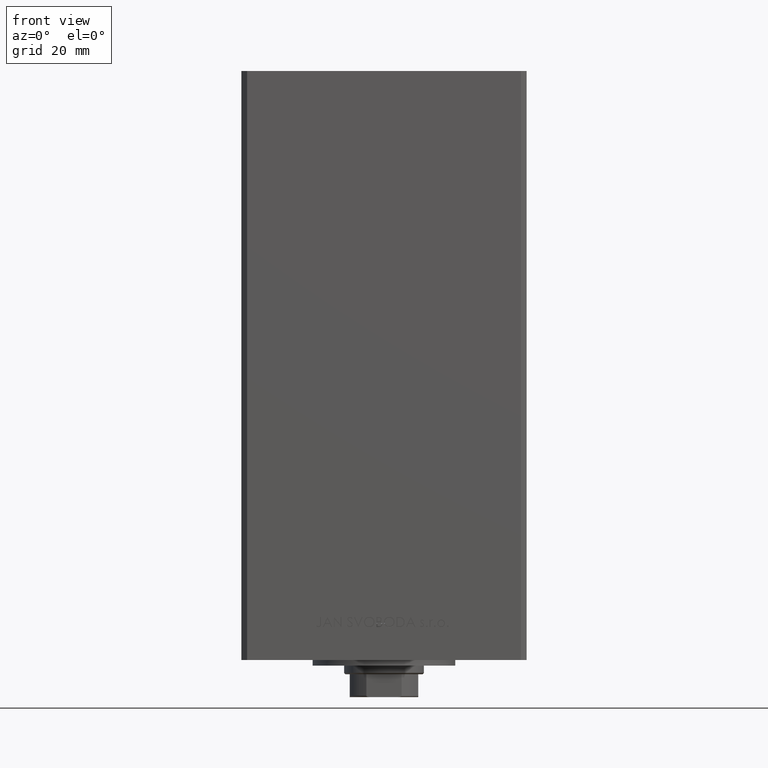
[diagram: clean part render]
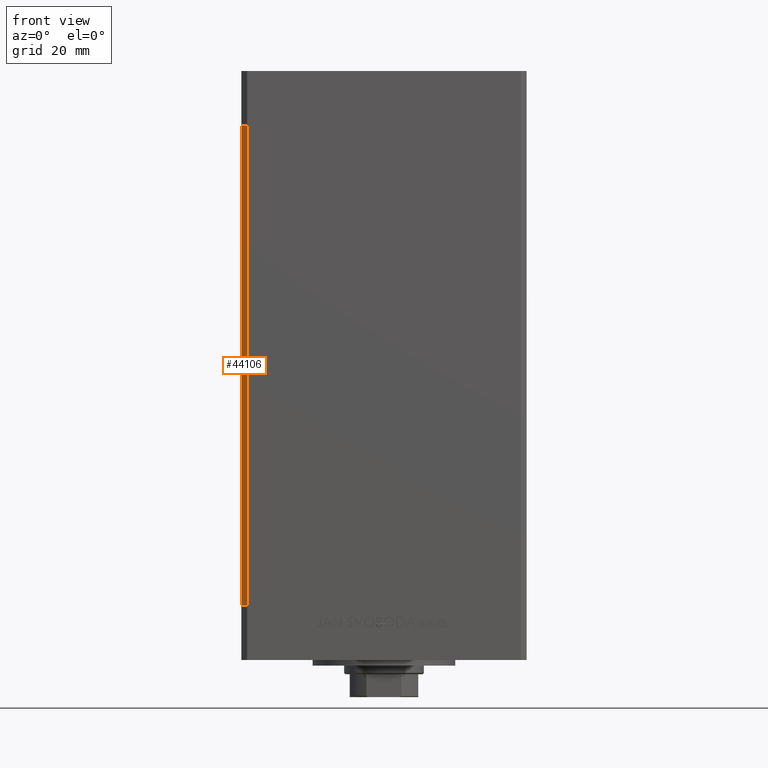
[diagram: same view with one face highlighted and labeled with its STEP entity id]
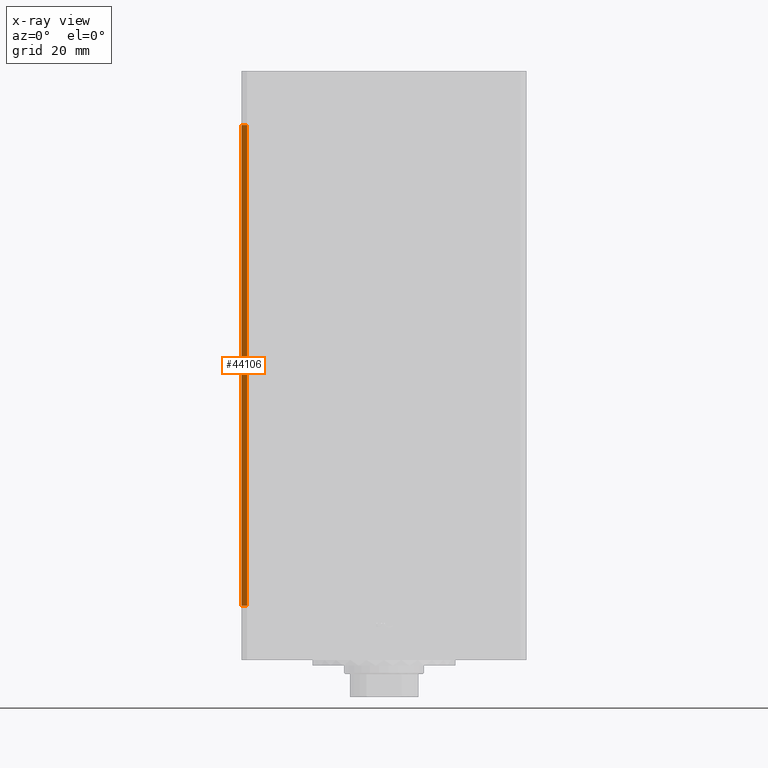
[diagram: x-ray of the same camera — body ghosted, the highlighted face saturated]
A machine part, front view. The second image highlights one B-rep face of the part: STEP entity #44106.
The next image is the same camera in x-ray: the body ghosted, the highlighted face saturated — about 0% of this face is hidden behind the body in this view.
In plain terms, the highlighted planar face has unit normal (0.7071, 0.7071, 0).
Its self-contained STEP definition (entity closure, byte-faithful):
#354 = PLANE ( 'NONE',  #15833 ) ;
#728 = ORIENTED_EDGE ( 'NONE', *, *, #16809, .F. ) ;
#3680 = VECTOR ( 'NONE', #34990, 1000.000000000000114 ) ;
#3821 = LINE ( 'NONE', #11540, #32649 ) ;
#3827 = DIRECTION ( 'NONE',  ( 0.7071067811865475727, 0.7071067811865475727, -0.000000000000000000 ) ) ;
#4247 = CARTESIAN_POINT ( 'NONE',  ( -47.99999999999998579, -43.50000000000000000, 168.5000000000000000 ) ) ;
#4918 = EDGE_LOOP ( 'NONE', ( #9275, #728, #36668, #30566 ) ) ;
#5357 = CARTESIAN_POINT ( 'NONE',  ( -49.99999999999998579, -41.49999999999999289, 168.5000000000000000 ) ) ;
#7977 = LINE ( 'NONE', #4247, #35651 ) ;
#8054 = VERTEX_POINT ( 'NONE', #27189 ) ;
#9275 = ORIENTED_EDGE ( 'NONE', *, *, #23966, .T. ) ;
#9710 = VERTEX_POINT ( 'NONE', #13041 ) ;
#10133 = VERTEX_POINT ( 'NONE', #20701 ) ;
#10629 = EDGE_CURVE ( 'NONE', #10133, #9710, #15831, .T. ) ;
#11305 = FACE_OUTER_BOUND ( 'NONE', #4918, .T. ) ;
#11540 = CARTESIAN_POINT ( 'NONE',  ( -49.99999999999998579, -41.49999999999999289, 168.5000000000000000 ) ) ;
#12091 = VERTEX_POINT ( 'NONE', #37623 ) ;
#13041 = CARTESIAN_POINT ( 'NONE',  ( -47.99999999999998579, -43.50000000000000000, 168.5000000000000000 ) ) ;
#15831 = LINE ( 'NONE', #5357, #3680 ) ;
#15833 = AXIS2_PLACEMENT_3D ( 'NONE', #41892, #3827, #41644 ) ;
#16809 = EDGE_CURVE ( 'NONE', #9710, #8054, #7977, .T. ) ;
#19006 = DIRECTION ( 'NONE',  ( -0.000000000000000000, -0.000000000000000000, -1.000000000000000000 ) ) ;
#20701 = CARTESIAN_POINT ( 'NONE',  ( -49.99999999999998579, -41.49999999999999289, 168.5000000000000000 ) ) ;
#20834 = DIRECTION ( 'NONE',  ( -0.000000000000000000, -0.000000000000000000, -1.000000000000000000 ) ) ;
#23966 = EDGE_CURVE ( 'NONE', #12091, #8054, #35044, .T. ) ;
#27189 = CARTESIAN_POINT ( 'NONE',  ( -47.99999999999998579, -43.50000000000000000, 0.000000000000000000 ) ) ;
#30233 = VECTOR ( 'NONE', #31326, 1000.000000000000114 ) ;
#30566 = ORIENTED_EDGE ( 'NONE', *, *, #47556, .T. ) ;
#31326 = DIRECTION ( 'NONE',  ( 0.7071067811865474617, -0.7071067811865474617, 0.000000000000000000 ) ) ;
#31561 = CARTESIAN_POINT ( 'NONE',  ( -49.99999999999998579, -41.49999999999999289, 0.000000000000000000 ) ) ;
#32649 = VECTOR ( 'NONE', #19006, 1000.000000000000000 ) ;
#34990 = DIRECTION ( 'NONE',  ( 0.7071067811865474617, -0.7071067811865474617, 0.000000000000000000 ) ) ;
#35044 = LINE ( 'NONE', #31561, #30233 ) ;
#35651 = VECTOR ( 'NONE', #20834, 1000.000000000000000 ) ;
#36668 = ORIENTED_EDGE ( 'NONE', *, *, #10629, .F. ) ;
#37623 = CARTESIAN_POINT ( 'NONE',  ( -49.99999999999998579, -41.49999999999999289, 0.000000000000000000 ) ) ;
#41644 = DIRECTION ( 'NONE',  ( -0.7071067811865474617, 0.7071067811865474617, 0.000000000000000000 ) ) ;
#41892 = CARTESIAN_POINT ( 'NONE',  ( -49.99999999999998579, -41.49999999999999289, 168.5000000000000000 ) ) ;
#44106 = ADVANCED_FACE ( 'NONE', ( #11305 ), #354, .F. ) ;
#47556 = EDGE_CURVE ( 'NONE', #10133, #12091, #3821, .T. ) ;